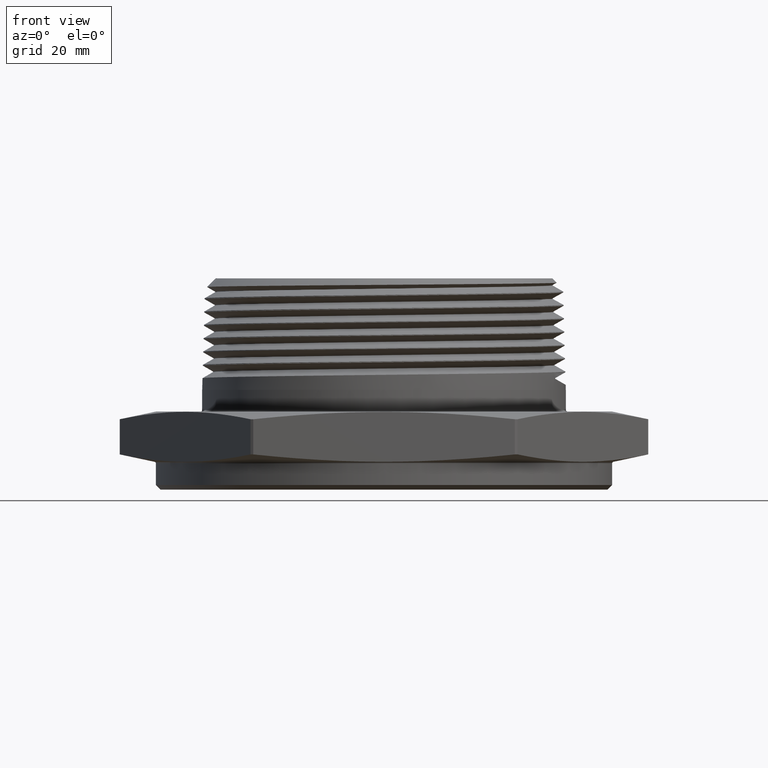
[diagram: clean part render]
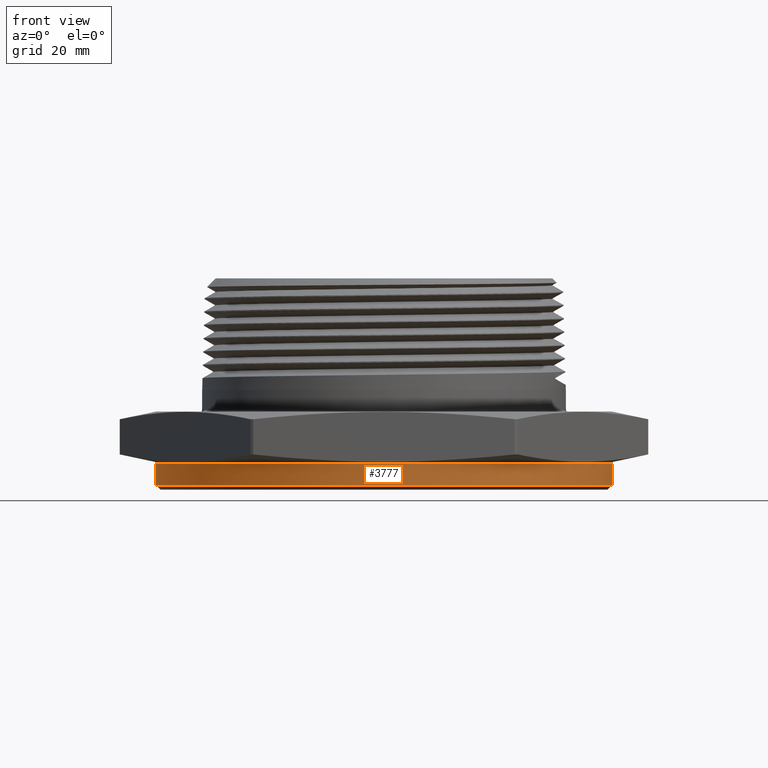
[diagram: same view with one face highlighted and labeled with its STEP entity id]
A machine part, front view. The second image highlights one B-rep face of the part: STEP entity #3777.
In plain terms, the highlighted cylindrical surface (partial cylindrical patch) has radius 37.846 mm, axis along (-0, -0, 1).
Its self-contained STEP definition (entity closure, byte-faithful):
#1329 = EDGE_CURVE ( 'NONE', #1628, #1635, #1719, .T. ) ;
#1331 = EDGE_CURVE ( 'NONE', #1611, #1600, #1722, .T. ) ;
#1335 = EDGE_CURVE ( 'NONE', #1635, #1600, #1728, .T. ) ;
#1349 = AXIS2_PLACEMENT_3D ( 'NONE', #7629, #7628, #7627 ) ;
#1407 = AXIS2_PLACEMENT_3D ( 'NONE', #3514, #3510, #3511 ) ;
#1433 = AXIS2_PLACEMENT_3D ( 'NONE', #2424, #2425, #2426 ) ;
#1600 = VERTEX_POINT ( 'NONE', #7064 ) ;
#1611 = VERTEX_POINT ( 'NONE', #7050 ) ;
#1628 = VERTEX_POINT ( 'NONE', #7029 ) ;
#1635 = VERTEX_POINT ( 'NONE', #7022 ) ;
#1670 = EDGE_LOOP ( 'NONE', ( #7128, #7105, #7106, #7117 ) ) ;
#1719 = LINE ( 'NONE', #7646, #1723 ) ;
#1722 = LINE ( 'NONE', #7644, #1726 ) ;
#1723 = VECTOR ( 'NONE', #7650, 39.37007874015748100 ) ;
#1726 = VECTOR ( 'NONE', #7645, 39.37007874015748100 ) ;
#1728 = CIRCLE ( 'NONE', #1349, 1.490000000000000400 ) ;
#2424 = CARTESIAN_POINT ( 'NONE',  ( 0.0000000000000000000, 0.0000000000000000000, -0.1500000000000016900 ) ) ;
#2425 = DIRECTION ( 'NONE',  ( 0.0000000000000000000, 0.0000000000000000000, 1.000000000000000000 ) ) ;
#2426 = DIRECTION ( 'NONE',  ( -1.000000000000000000, 0.0000000000000000000, 0.0000000000000000000 ) ) ;
#3510 = DIRECTION ( 'NONE',  ( -0.0000000000000000000, -0.0000000000000000000, 1.000000000000000000 ) ) ;
#3511 = DIRECTION ( 'NONE',  ( 1.000000000000000000, 0.0000000000000000000, 0.0000000000000000000 ) ) ;
#3514 = CARTESIAN_POINT ( 'NONE',  ( 0.0000000000000000000, 0.0000000000000000000, -0.1799999999999999900 ) ) ;
#3777 = ADVANCED_FACE ( 'NONE', ( #7715 ), #7718, .T. ) ;
#3989 = EDGE_CURVE ( 'NONE', #1611, #1628, #7820, .T. ) ;
#7022 = CARTESIAN_POINT ( 'NONE',  ( 1.490000000000000400, 0.0000000000000000000, -0.008097840331950633900 ) ) ;
#7029 = CARTESIAN_POINT ( 'NONE',  ( 1.490000000000000400, 0.0000000000000000000, -0.1500000000000016900 ) ) ;
#7050 = CARTESIAN_POINT ( 'NONE',  ( -1.490000000000000400, 1.824723730729556900E-016, -0.1500000000000016900 ) ) ;
#7064 = CARTESIAN_POINT ( 'NONE',  ( -1.490000000000000400, 1.824723730729556900E-016, -0.008097840331950446500 ) ) ;
#7105 = ORIENTED_EDGE ( 'NONE', *, *, #3989, .T. ) ;
#7106 = ORIENTED_EDGE ( 'NONE', *, *, #1329, .T. ) ;
#7117 = ORIENTED_EDGE ( 'NONE', *, *, #1335, .T. ) ;
#7128 = ORIENTED_EDGE ( 'NONE', *, *, #1331, .F. ) ;
#7627 = DIRECTION ( 'NONE',  ( -1.000000000000000000, 0.0000000000000000000, 6.302501663235504600E-017 ) ) ;
#7628 = DIRECTION ( 'NONE',  ( -6.274932739761922300E-017, -0.0000000000000000000, -1.000000000000000000 ) ) ;
#7629 = CARTESIAN_POINT ( 'NONE',  ( 0.0000000000000000000, 0.0000000000000000000, -0.008097840331950540200 ) ) ;
#7644 = CARTESIAN_POINT ( 'NONE',  ( -1.490000000000000400, 1.824723730729556900E-016, -0.1799999999999999900 ) ) ;
#7645 = DIRECTION ( 'NONE',  ( -0.0000000000000000000, -0.0000000000000000000, 1.000000000000000000 ) ) ;
#7646 = CARTESIAN_POINT ( 'NONE',  ( 1.490000000000000400, 0.0000000000000000000, -0.1799999999999999900 ) ) ;
#7650 = DIRECTION ( 'NONE',  ( -0.0000000000000000000, -0.0000000000000000000, 1.000000000000000000 ) ) ;
#7715 = FACE_OUTER_BOUND ( 'NONE', #1670, .T. ) ;
#7718 = CYLINDRICAL_SURFACE ( 'NONE', #1407, 1.490000000000000400 ) ;
#7820 = CIRCLE ( 'NONE', #1433, 1.490000000000000400 ) ;